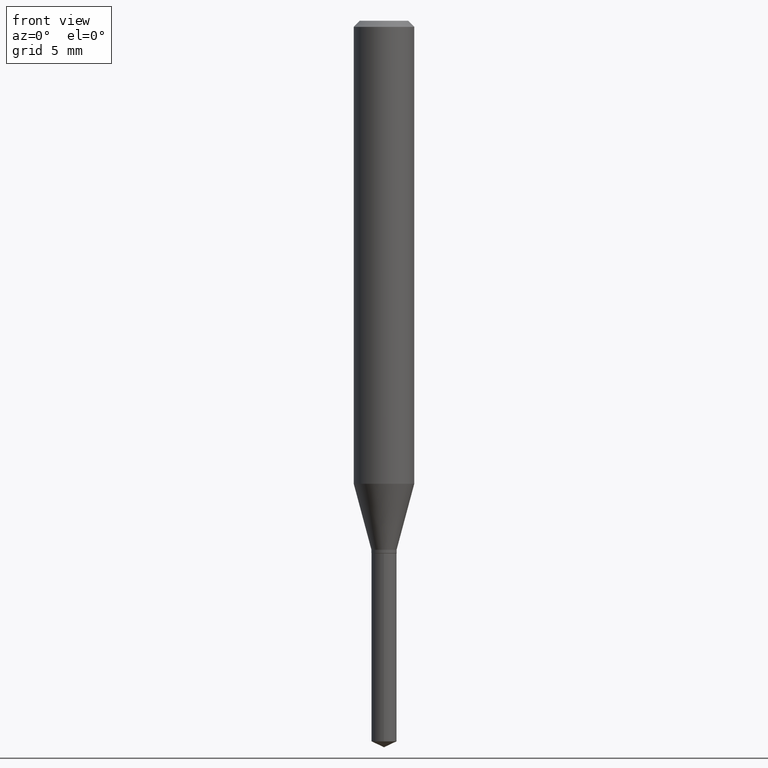
[diagram: clean part render]
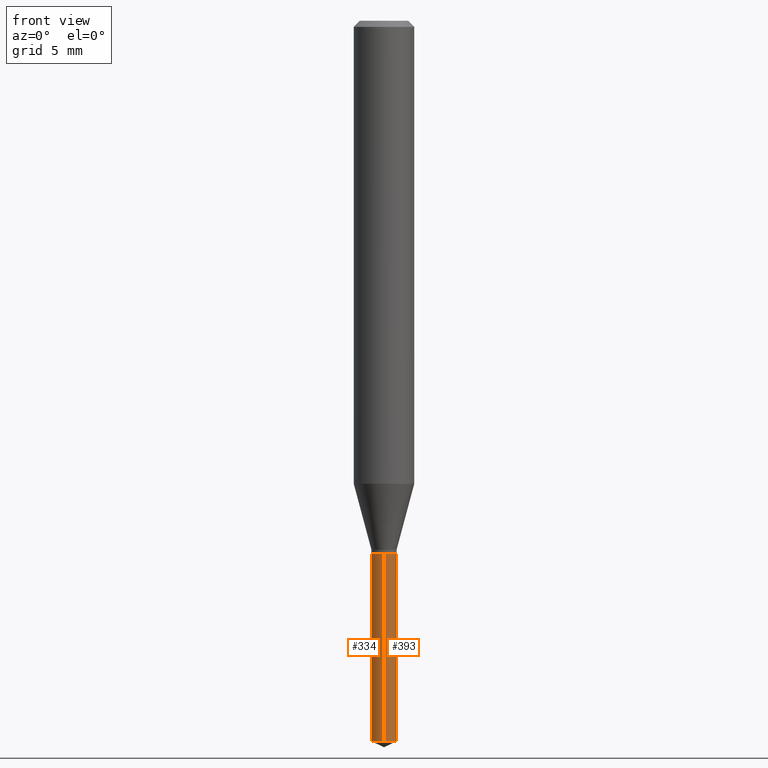
[diagram: same view with one multi-face feature highlighted, each face labeled with its STEP entity id]
A machine part, front view. The highlighted faces form ONE feature: a constant-radius fillet chain: 2 tangent blend faces with common blend radius 0.6604 mm. The faces share edges in the B-rep.
Their STEP definitions:
[1] entity #393 (Cylinder):
#12 = CARTESIAN_POINT ( 'NONE',  ( 1.847411112976625000E-16, 0.02599999999999615813, -1.100000000000000089 ) ) ;
#21 = VERTEX_POINT ( 'NONE', #466 ) ;
#24 = CARTESIAN_POINT ( 'NONE',  ( 2.690015686803650369E-29, -3.840629472727460101E-15, -1.100000000000000089 ) ) ;
#25 = CIRCLE ( 'NONE', #424, 0.02599999999999999534 ) ;
#32 = EDGE_CURVE ( 'NONE', #368, #105, #78, .T. ) ;
#60 = DIRECTION ( 'NONE',  ( -6.982962677686266711E-15, -1.000000000000000000, 0.000000000000000000 ) ) ;
#68 = EDGE_CURVE ( 'NONE', #322, #105, #142, .T. ) ;
#69 = EDGE_LOOP ( 'NONE', ( #177, #337, #294, #140 ) ) ;
#78 = LINE ( 'NONE', #232, #276 ) ;
#105 = VERTEX_POINT ( 'NONE', #12 ) ;
#140 = ORIENTED_EDGE ( 'NONE', *, *, #188, .F. ) ;
#142 = CIRCLE ( 'NONE', #431, 0.02599999999999999534 ) ;
#157 = CARTESIAN_POINT ( 'NONE',  ( 3.638527539294547012E-29, -5.194929682693762230E-15, -1.487876000887969896 ) ) ;
#177 = ORIENTED_EDGE ( 'NONE', *, *, #292, .T. ) ;
#188 = EDGE_CURVE ( 'NONE', #21, #322, #217, .T. ) ;
#192 = CARTESIAN_POINT ( 'NONE',  ( 2.690015686803650369E-29, -3.840629472727460101E-15, -1.100000000000000089 ) ) ;
#203 = DIRECTION ( 'NONE',  ( -6.982962677686266711E-15, -1.000000000000000000, 5.253553833969737838E-15 ) ) ;
#217 = LINE ( 'NONE', #367, #270 ) ;
#229 = FACE_OUTER_BOUND ( 'NONE', #69, .T. ) ;
#232 = CARTESIAN_POINT ( 'NONE',  ( 1.847411112976528858E-16, 0.02599999999999615466, -1.100000000000000089 ) ) ;
#270 = VECTOR ( 'NONE', #446, 39.37007874015748143 ) ;
#275 = DIRECTION ( 'NONE',  ( -2.445399690415121810E-29, 3.491580316559632610E-15, 1.000000000000000000 ) ) ;
#276 = VECTOR ( 'NONE', #275, 39.37007874015748143 ) ;
#291 = DIRECTION ( 'NONE',  ( -2.445399690415121530E-29, 3.491580316559632610E-15, 1.000000000000000000 ) ) ;
#292 = EDGE_CURVE ( 'NONE', #21, #368, #25, .T. ) ;
#294 = ORIENTED_EDGE ( 'NONE', *, *, #68, .F. ) ;
#322 = VERTEX_POINT ( 'NONE', #426 ) ;
#327 = CYLINDRICAL_SURFACE ( 'NONE', #417, 0.02599999999999999534 ) ;
#337 = ORIENTED_EDGE ( 'NONE', *, *, #32, .T. ) ;
#366 = CARTESIAN_POINT ( 'NONE',  ( 1.847411112976624754E-16, 0.02599999999999481198, -1.487876000887969896 ) ) ;
#367 = CARTESIAN_POINT ( 'NONE',  ( -1.815570296198159840E-16, -0.02600000000000383948, -1.099999999999999867 ) ) ;
#368 = VERTEX_POINT ( 'NONE', #366 ) ;
#393 = ADVANCED_FACE ( 'NONE', ( #229 ), #327, .T. ) ;
#407 = DIRECTION ( 'NONE',  ( -6.982962677686266711E-15, -1.000000000000000000, 5.253553833969737838E-15 ) ) ;
#417 = AXIS2_PLACEMENT_3D ( 'NONE', #24, #440, #407 ) ;
#424 = AXIS2_PLACEMENT_3D ( 'NONE', #157, #291, #60 ) ;
#426 = CARTESIAN_POINT ( 'NONE',  ( -1.815570296198159840E-16, -0.02600000000000383948, -1.099999999999999867 ) ) ;
#431 = AXIS2_PLACEMENT_3D ( 'NONE', #192, #460, #203 ) ;
#440 = DIRECTION ( 'NONE',  ( -2.445399690415121530E-29, 3.491580316559632610E-15, 1.000000000000000000 ) ) ;
#446 = DIRECTION ( 'NONE',  ( -2.445399690415121810E-29, 3.491580316559632610E-15, 1.000000000000000000 ) ) ;
#460 = DIRECTION ( 'NONE',  ( -2.445399690415121530E-29, 3.491580316559632610E-15, 1.000000000000000000 ) ) ;
#466 = CARTESIAN_POINT ( 'NONE',  ( -1.815570296198065177E-16, -0.02600000000000519951, -1.487876000887969896 ) ) ;
[2] entity #334 (Cylinder):
#12 = CARTESIAN_POINT ( 'NONE',  ( 1.847411112976625000E-16, 0.02599999999999615813, -1.100000000000000089 ) ) ;
#21 = VERTEX_POINT ( 'NONE', #466 ) ;
#28 = ORIENTED_EDGE ( 'NONE', *, *, #165, .F. ) ;
#32 = EDGE_CURVE ( 'NONE', #368, #105, #78, .T. ) ;
#42 = DIRECTION ( 'NONE',  ( -6.982962677686266711E-15, -1.000000000000000000, 0.000000000000000000 ) ) ;
#55 = CARTESIAN_POINT ( 'NONE',  ( 2.690015686803650369E-29, -3.840629472727460101E-15, -1.100000000000000089 ) ) ;
#64 = EDGE_LOOP ( 'NONE', ( #483, #137, #390, #28 ) ) ;
#76 = EDGE_CURVE ( 'NONE', #368, #21, #287, .T. ) ;
#78 = LINE ( 'NONE', #232, #276 ) ;
#104 = DIRECTION ( 'NONE',  ( -2.445399690415121530E-29, 3.491580316559632610E-15, 1.000000000000000000 ) ) ;
#105 = VERTEX_POINT ( 'NONE', #12 ) ;
#113 = AXIS2_PLACEMENT_3D ( 'NONE', #461, #286, #118 ) ;
#118 = DIRECTION ( 'NONE',  ( -6.982962677686266711E-15, -1.000000000000000000, 5.253553833969737838E-15 ) ) ;
#119 = CARTESIAN_POINT ( 'NONE',  ( 3.638527539294547012E-29, -5.194929682693762230E-15, -1.487876000887969896 ) ) ;
#137 = ORIENTED_EDGE ( 'NONE', *, *, #76, .T. ) ;
#162 = AXIS2_PLACEMENT_3D ( 'NONE', #55, #104, #429 ) ;
#165 = EDGE_CURVE ( 'NONE', #105, #322, #488, .T. ) ;
#188 = EDGE_CURVE ( 'NONE', #21, #322, #217, .T. ) ;
#217 = LINE ( 'NONE', #367, #270 ) ;
#232 = CARTESIAN_POINT ( 'NONE',  ( 1.847411112976528858E-16, 0.02599999999999615466, -1.100000000000000089 ) ) ;
#270 = VECTOR ( 'NONE', #446, 39.37007874015748143 ) ;
#275 = DIRECTION ( 'NONE',  ( -2.445399690415121810E-29, 3.491580316559632610E-15, 1.000000000000000000 ) ) ;
#276 = VECTOR ( 'NONE', #275, 39.37007874015748143 ) ;
#286 = DIRECTION ( 'NONE',  ( -2.445399690415121530E-29, 3.491580316559632610E-15, 1.000000000000000000 ) ) ;
#287 = CIRCLE ( 'NONE', #416, 0.02599999999999999534 ) ;
#322 = VERTEX_POINT ( 'NONE', #426 ) ;
#334 = ADVANCED_FACE ( 'NONE', ( #400 ), #388, .T. ) ;
#366 = CARTESIAN_POINT ( 'NONE',  ( 1.847411112976624754E-16, 0.02599999999999481198, -1.487876000887969896 ) ) ;
#367 = CARTESIAN_POINT ( 'NONE',  ( -1.815570296198159840E-16, -0.02600000000000383948, -1.099999999999999867 ) ) ;
#368 = VERTEX_POINT ( 'NONE', #366 ) ;
#383 = DIRECTION ( 'NONE',  ( -2.445399690415121530E-29, 3.491580316559632610E-15, 1.000000000000000000 ) ) ;
#388 = CYLINDRICAL_SURFACE ( 'NONE', #113, 0.02599999999999999534 ) ;
#390 = ORIENTED_EDGE ( 'NONE', *, *, #188, .T. ) ;
#400 = FACE_OUTER_BOUND ( 'NONE', #64, .T. ) ;
#416 = AXIS2_PLACEMENT_3D ( 'NONE', #119, #383, #42 ) ;
#426 = CARTESIAN_POINT ( 'NONE',  ( -1.815570296198159840E-16, -0.02600000000000383948, -1.099999999999999867 ) ) ;
#429 = DIRECTION ( 'NONE',  ( -6.982962677686266711E-15, -1.000000000000000000, 5.253553833969737838E-15 ) ) ;
#446 = DIRECTION ( 'NONE',  ( -2.445399690415121810E-29, 3.491580316559632610E-15, 1.000000000000000000 ) ) ;
#461 = CARTESIAN_POINT ( 'NONE',  ( 2.690015686803650369E-29, -3.840629472727460101E-15, -1.100000000000000089 ) ) ;
#466 = CARTESIAN_POINT ( 'NONE',  ( -1.815570296198065177E-16, -0.02600000000000519951, -1.487876000887969896 ) ) ;
#483 = ORIENTED_EDGE ( 'NONE', *, *, #32, .F. ) ;
#488 = CIRCLE ( 'NONE', #162, 0.02599999999999999534 ) ;